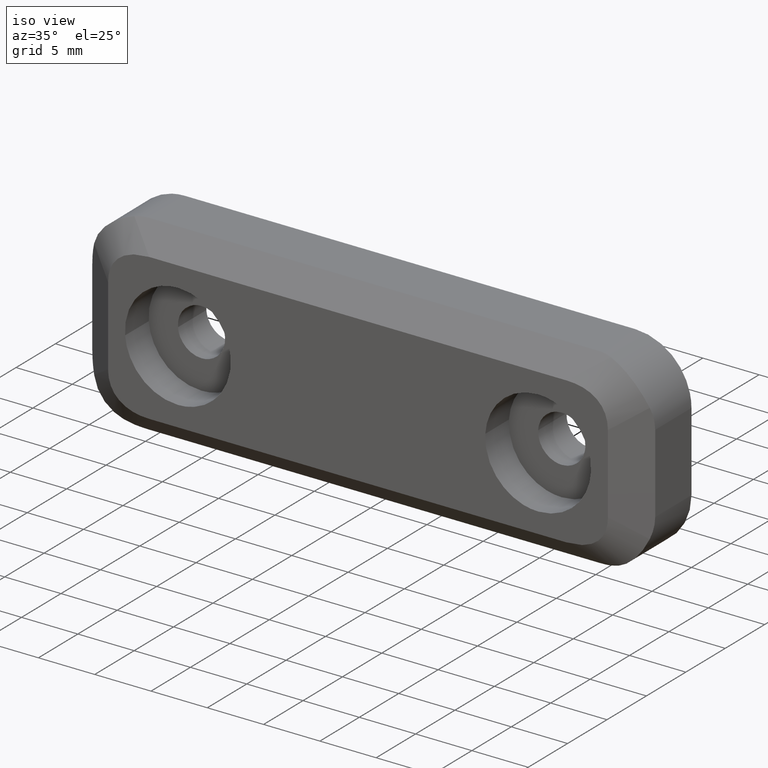
[diagram: clean part render]
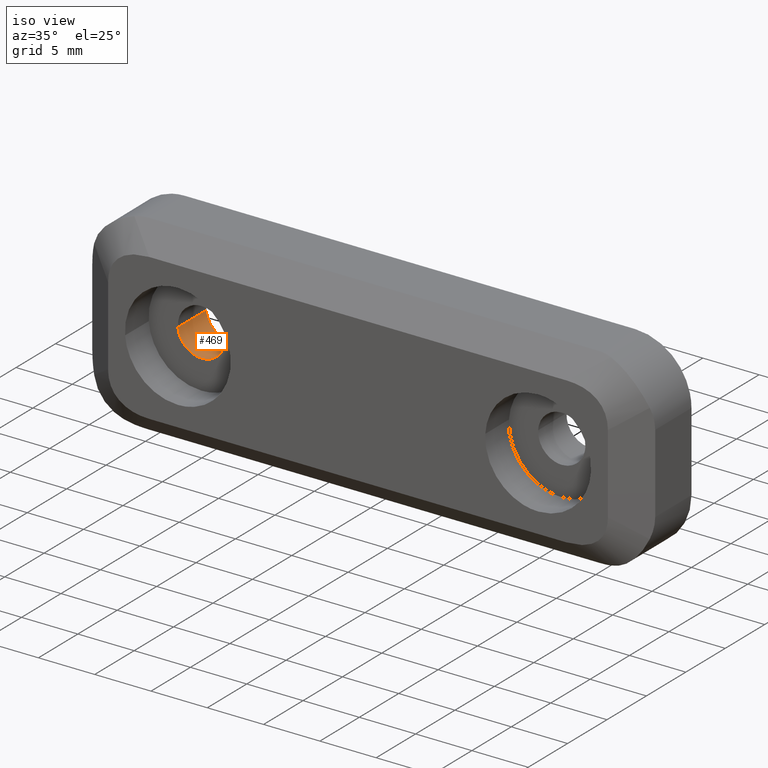
[diagram: same view with one face highlighted and labeled with its STEP entity id]
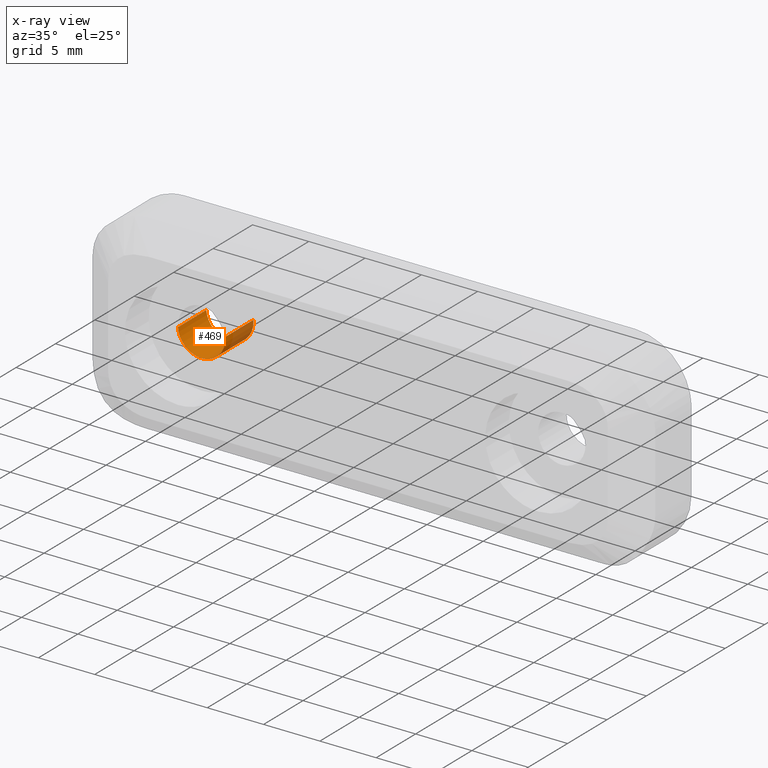
[diagram: x-ray of the same camera — body ghosted, the highlighted face saturated]
A machine part, iso view. The second image highlights one B-rep face of the part: STEP entity #469.
The next image is the same camera in x-ray: the body ghosted, the highlighted face saturated — about 16% of this face is hidden behind the body in this view.
In plain terms, the highlighted face is a freeform B-spline surface patch.
Its self-contained STEP definition (entity closure, byte-faithful):
#78=CARTESIAN_POINT('',(-13.906473599165450,-3.600000000000000,0.164764101092588));
#79=VERTEX_POINT('',#78);
#93=CARTESIAN_POINT('',(-16.0,-3.600000000000000,-2.100000000000025));
#94=VERTEX_POINT('',#93);
#95=CARTESIAN_POINT('',(-13.906473599165457,-3.600000000000001,0.164764101092587));
#96=CARTESIAN_POINT('',(-13.899999999999972,-3.600000000000000,0.082509224748312));
#97=CARTESIAN_POINT('',(-13.899999999999981,-3.600000000000000,0.0));
#98=CARTESIAN_POINT('',(-13.899999999999974,-3.600000000000000,-2.100000000000025));
#99=CARTESIAN_POINT('',(-16.0,-3.600000000000000,-2.100000000000025));
#107=(BOUNDED_CURVE()B_SPLINE_CURVE(2,(#95,#96,#97,#98,#99),.UNSPECIFIED.,.F.,.U.)B_SPLINE_CURVE_WITH_KNOTS((3,2,3),(0.736331300627517,0.750000000000000,1.0),.UNSPECIFIED.)CURVE()GEOMETRIC_REPRESENTATION_ITEM()RATIONAL_B_SPLINE_CURVE((0.969723356160860,0.983986122575200,1.0,0.707106781186548,1.0))REPRESENTATION_ITEM(''));
#108=EDGE_CURVE('',#79,#94,#107,.T.);
#110=CARTESIAN_POINT('',(-18.093526400834548,-3.600000000000001,-0.164764101092588));
#111=VERTEX_POINT('',#110);
#112=CARTESIAN_POINT('',(-16.0,-3.600000000000000,-2.100000000000025));
#113=CARTESIAN_POINT('',(-17.941220032422635,-3.600000000000001,-2.100000000000025));
#114=CARTESIAN_POINT('',(-18.093526400834548,-3.600000000000001,-0.164764101092588));
#122=(BOUNDED_CURVE()B_SPLINE_CURVE(2,(#112,#113,#114),.UNSPECIFIED.,.F.,.U.)B_SPLINE_CURVE_WITH_KNOTS((3,3),(0.0,0.236331300627517),.UNSPECIFIED.)CURVE()GEOMETRIC_REPRESENTATION_ITEM()RATIONAL_B_SPLINE_CURVE((1.0,0.723120658611347,0.969723356160860))REPRESENTATION_ITEM(''));
#123=EDGE_CURVE('',#94,#111,#122,.T.);
#403=CARTESIAN_POINT('',(-18.093526400839590,0.090000000000000,-0.164764101028478));
#404=CARTESIAN_POINT('',(-17.928762299811112,0.090000000000000,-2.258290501868071));
#405=CARTESIAN_POINT('',(-15.835235898971520,0.090000000000000,-2.093526400839593));
#406=CARTESIAN_POINT('',(-13.741709498131929,0.090000000000000,-1.928762299811116));
#407=CARTESIAN_POINT('',(-13.906473599160410,0.090000000000000,0.164764101028478));
#408=CARTESIAN_POINT('',(-18.093526400839590,-3.692250000000001,-0.164764101028478));
#409=CARTESIAN_POINT('',(-17.928762299811112,-3.692250000000001,-2.258290501868071));
#410=CARTESIAN_POINT('',(-15.835235898971520,-3.692250000000001,-2.093526400839593));
#411=CARTESIAN_POINT('',(-13.741709498131929,-3.692250000000001,-1.928762299811116));
#412=CARTESIAN_POINT('',(-13.906473599160410,-3.692250000000001,0.164764101028478));
#420=(BOUNDED_SURFACE()B_SPLINE_SURFACE(2,1,((#403,#408),(#404,#409),(#405,#410),(#406,#411),(#407,#412)),.UNSPECIFIED.,.F.,.F.,.U.)B_SPLINE_SURFACE_WITH_KNOTS((3,2,3),(2,2),(0.0,3.479393923934043,6.958787847868085),(0.0,3.782250000000001),.UNSPECIFIED.)GEOMETRIC_REPRESENTATION_ITEM()RATIONAL_B_SPLINE_SURFACE(((1.0,1.0),(0.707106781186548,0.707106781186548),(1.0,1.0),(0.707106781186548,0.707106781186548),(1.0,1.0)))REPRESENTATION_ITEM('')SURFACE());
#421=ORIENTED_EDGE('',*,*,#123,.F.);
#422=ORIENTED_EDGE('',*,*,#108,.F.);
#423=CARTESIAN_POINT('',(-13.906473599165450,1.318390E-016,0.164764101092588));
#424=VERTEX_POINT('',#423);
#425=CARTESIAN_POINT('',(-13.906473599165450,1.318390E-016,0.164764101092588));
#426=CARTESIAN_POINT('',(-13.906473599165450,-3.600000000000000,0.164764101092588));
#427=QUASI_UNIFORM_CURVE('',1,(#425,#426),.UNSPECIFIED.,.F.,.U.);
#428=EDGE_CURVE('',#424,#79,#427,.T.);
#429=ORIENTED_EDGE('',*,*,#428,.F.);
#430=CARTESIAN_POINT('',(-16.0,0.0,-2.100000000000025));
#431=VERTEX_POINT('',#430);
#432=CARTESIAN_POINT('',(-13.906473599165457,0.0,0.164764101092587));
#433=CARTESIAN_POINT('',(-13.899999999999972,0.0,0.082509224748312));
#434=CARTESIAN_POINT('',(-13.899999999999981,0.0,0.0));
#435=CARTESIAN_POINT('',(-13.899999999999974,0.0,-2.100000000000025));
#436=CARTESIAN_POINT('',(-16.0,0.0,-2.100000000000025));
#444=(BOUNDED_CURVE()B_SPLINE_CURVE(2,(#432,#433,#434,#435,#436),.UNSPECIFIED.,.F.,.U.)B_SPLINE_CURVE_WITH_KNOTS((3,2,3),(0.736331300627517,0.750000000000000,1.0),.UNSPECIFIED.)CURVE()GEOMETRIC_REPRESENTATION_ITEM()RATIONAL_B_SPLINE_CURVE((0.969723356160860,0.983986122575200,1.0,0.707106781186548,1.0))REPRESENTATION_ITEM(''));
#445=EDGE_CURVE('',#424,#431,#444,.T.);
#446=ORIENTED_EDGE('',*,*,#445,.T.);
#447=CARTESIAN_POINT('',(-18.093526400834548,1.318390E-016,-0.164764101092588));
#448=VERTEX_POINT('',#447);
#449=CARTESIAN_POINT('',(-16.0,0.0,-2.100000000000025));
#450=CARTESIAN_POINT('',(-17.941220032422635,0.0,-2.100000000000025));
#451=CARTESIAN_POINT('',(-18.093526400834548,0.0,-0.164764101092588));
#459=(BOUNDED_CURVE()B_SPLINE_CURVE(2,(#449,#450,#451),.UNSPECIFIED.,.F.,.U.)B_SPLINE_CURVE_WITH_KNOTS((3,3),(0.0,0.236331300627517),.UNSPECIFIED.)CURVE()GEOMETRIC_REPRESENTATION_ITEM()RATIONAL_B_SPLINE_CURVE((1.0,0.723120658611347,0.969723356160860))REPRESENTATION_ITEM(''));
#460=EDGE_CURVE('',#431,#448,#459,.T.);
#461=ORIENTED_EDGE('',*,*,#460,.T.);
#462=CARTESIAN_POINT('',(-18.093526400834548,1.318390E-016,-0.164764101092588));
#463=CARTESIAN_POINT('',(-18.093526400834548,-3.600000000000001,-0.164764101092588));
#464=QUASI_UNIFORM_CURVE('',1,(#462,#463),.UNSPECIFIED.,.F.,.U.);
#465=EDGE_CURVE('',#448,#111,#464,.T.);
#466=ORIENTED_EDGE('',*,*,#465,.T.);
#467=EDGE_LOOP('',(#421,#422,#429,#446,#461,#466));
#468=FACE_OUTER_BOUND('',#467,.T.);
#469=ADVANCED_FACE('',(#468),#420,.F.);